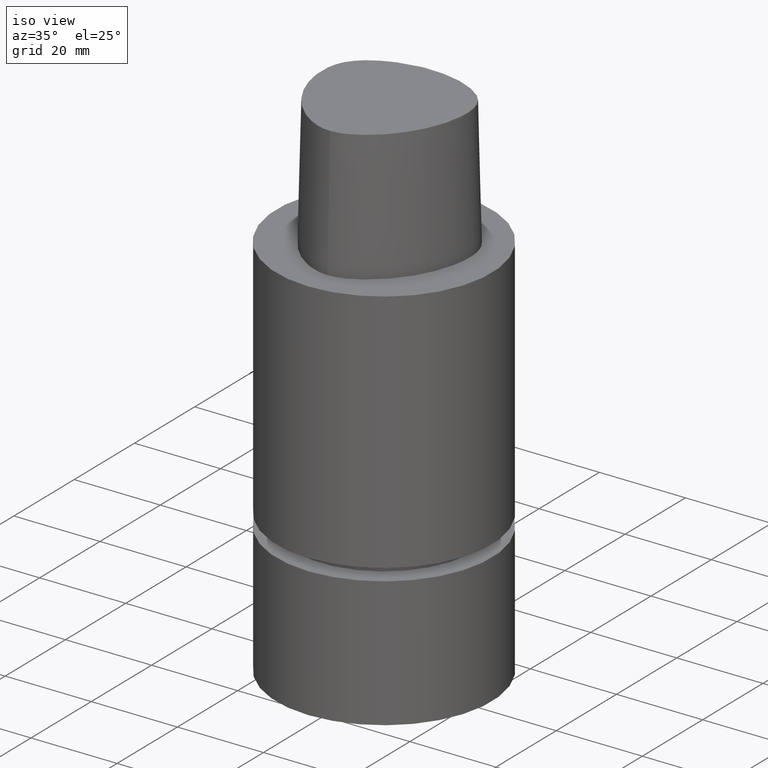
[diagram: clean part render]
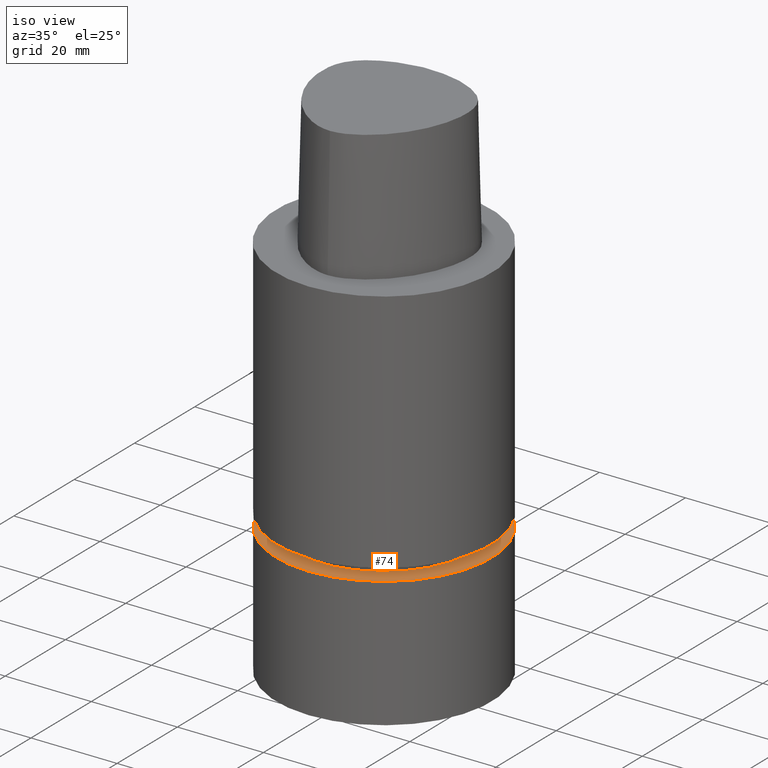
[diagram: same view with one face highlighted and labeled with its STEP entity id]
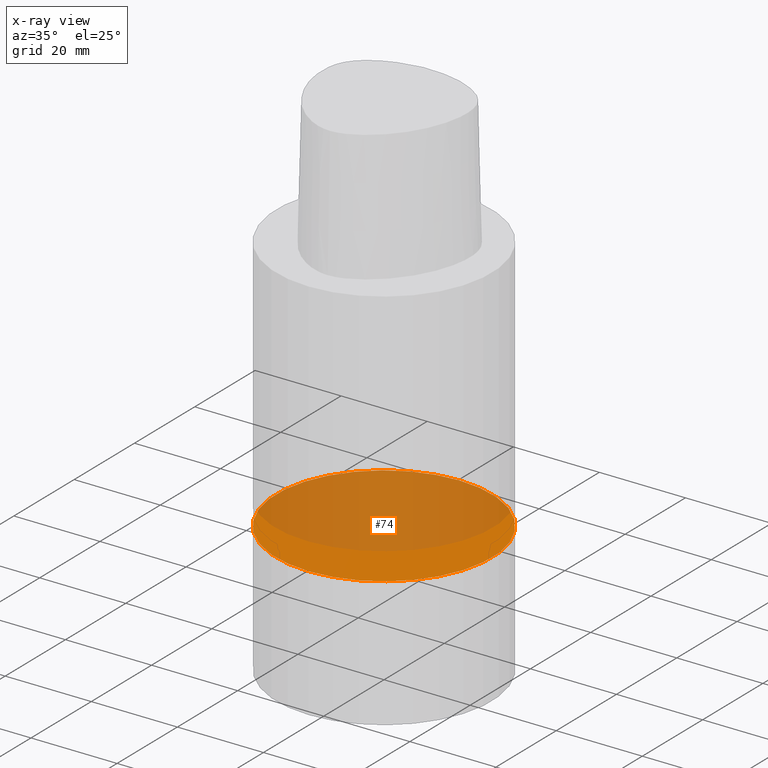
[diagram: x-ray of the same camera — body ghosted, the highlighted face saturated]
A machine part, iso view. The second image highlights one B-rep face of the part: STEP entity #74.
The next image is the same camera in x-ray: the body ghosted, the highlighted face saturated — about 66% of this face is hidden behind the body in this view.
In plain terms, the highlighted planar face has unit normal (-0, -0, 1).
Its self-contained STEP definition (entity closure, byte-faithful):
#74=ADVANCED_FACE('Unnamed[1]',(#169),#170,.T.);
#119=EDGE_CURVE('Unnamed[1]',#235,#235,#236,.T.);
#169=FACE_OUTER_BOUND('',#289,.T.);
#170=PLANE('',#290);
#235=VERTEX_POINT('',#515);
#236=CIRCLE('',#516,25.0);
#289=EDGE_LOOP('',(#932));
#290=AXIS2_PLACEMENT_3D('',#933,#934,#935);
#515=CARTESIAN_POINT('',(3.66169392945059E-015,25.0,-59.8));
#516=AXIS2_PLACEMENT_3D('',#1001,#1002,#1003);
#932=ORIENTED_EDGE('',*,*,#119,.F.);
#933=CARTESIAN_POINT('',(3.66169392945059E-015,12.5,-59.8));
#934=DIRECTION('',(-6.12323399573677E-017,-1.22464679914735E-016,1.0));
#935=DIRECTION('',(1.23259516440783E-032,-1.0,-1.22464679914735E-016));
#1001=CARTESIAN_POINT('',(3.66169392945059E-015,7.32338785890117E-015,-59.8));
#1002=DIRECTION('',(6.12323399573677E-017,1.22464679914735E-016,-1.0));
#1003=DIRECTION('',(-1.23259516440783E-032,1.0,1.22464679914735E-016));